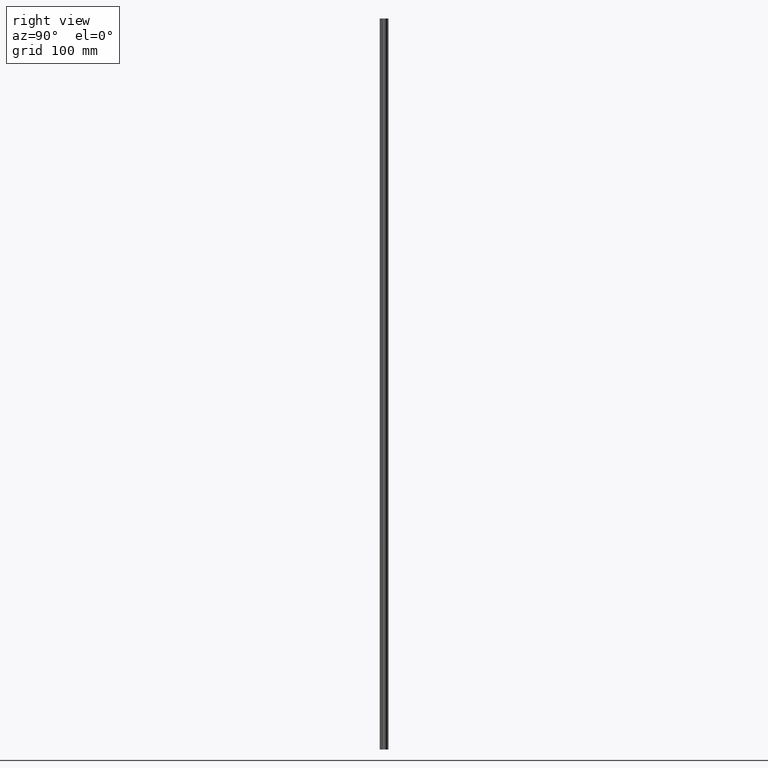
[diagram: clean part render]
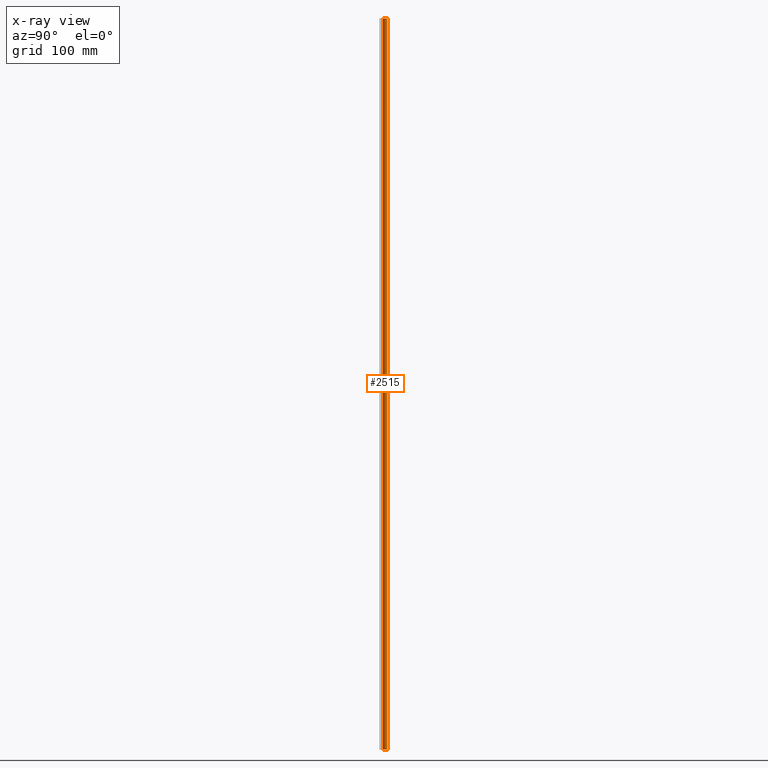
[diagram: x-ray — body ghosted, one internal face saturated and labeled with its STEP entity id]
A machine part, right view, then the same camera in x-ray: the body is ghosted and one INTERNAL B-rep face — a face not visible from any outside direction — is saturated and labeled: STEP entity #2515.
In plain terms, the highlighted cylindrical surface (edge-blend (fillet) strip) has radius 3 mm, axis along (0, 0, 1).
Its self-contained STEP definition (entity closure, byte-faithful):
#82=CYLINDRICAL_SURFACE('',#2873,3.);
#246=FACE_OUTER_BOUND('',#377,.T.);
#377=EDGE_LOOP('',(#2127,#2128,#2129,#2130));
#515=CIRCLE('',#2861,3.);
#525=CIRCLE('',#2874,3.);
#684=LINE('',#4475,#863);
#685=LINE('',#4479,#864);
#863=VECTOR('',#3597,10.);
#864=VECTOR('',#3602,10.);
#1098=VERTEX_POINT('',#4422);
#1099=VERTEX_POINT('',#4424);
#1121=VERTEX_POINT('',#4473);
#1122=VERTEX_POINT('',#4477);
#1461=EDGE_CURVE('',#1098,#1099,#515,.T.);
#1487=EDGE_CURVE('',#1121,#1098,#684,.T.);
#1488=EDGE_CURVE('',#1122,#1121,#525,.T.);
#1489=EDGE_CURVE('',#1122,#1099,#685,.T.);
#2127=ORIENTED_EDGE('',*,*,#1487,.F.);
#2128=ORIENTED_EDGE('',*,*,#1488,.F.);
#2129=ORIENTED_EDGE('',*,*,#1489,.T.);
#2130=ORIENTED_EDGE('',*,*,#1461,.F.);
#2515=ADVANCED_FACE('',(#246),#82,.F.);
#2861=AXIS2_PLACEMENT_3D('',#4425,#3557,#3558);
#2873=AXIS2_PLACEMENT_3D('',#4476,#3598,#3599);
#2874=AXIS2_PLACEMENT_3D('',#4478,#3600,#3601);
#3557=DIRECTION('center_axis',(0.,0.,1.));
#3558=DIRECTION('ref_axis',(0.333333333329776,0.942809041583321,0.));
#3597=DIRECTION('',(0.,0.,-1.));
#3598=DIRECTION('center_axis',(0.,0.,1.));
#3599=DIRECTION('ref_axis',(-1.,2.31296463463574E-16,0.));
#3600=DIRECTION('center_axis',(0.,0.,-1.));
#3601=DIRECTION('ref_axis',(0.333333333329776,0.942809041583321,0.));
#3602=DIRECTION('',(0.,0.,-1.));
#4422=CARTESIAN_POINT('',(16.,2.82842712469995,-500.));
#4424=CARTESIAN_POINT('',(16.,-2.82842712479998,-500.));
#4425=CARTESIAN_POINT('Origin',(15.0000000000107,-5.00177677054126E-11,
-500.));
#4473=CARTESIAN_POINT('',(16.,2.82842712469995,500.));
#4475=CARTESIAN_POINT('',(16.,2.82842712469995,0.));
#4476=CARTESIAN_POINT('Origin',(15.0000000000107,-5.00177677054126E-11,
0.));
#4477=CARTESIAN_POINT('',(16.,-2.82842712479998,500.));
#4478=CARTESIAN_POINT('Origin',(15.0000000000107,-5.00177677054126E-11,
500.));
#4479=CARTESIAN_POINT('',(16.,-2.82842712479998,0.));